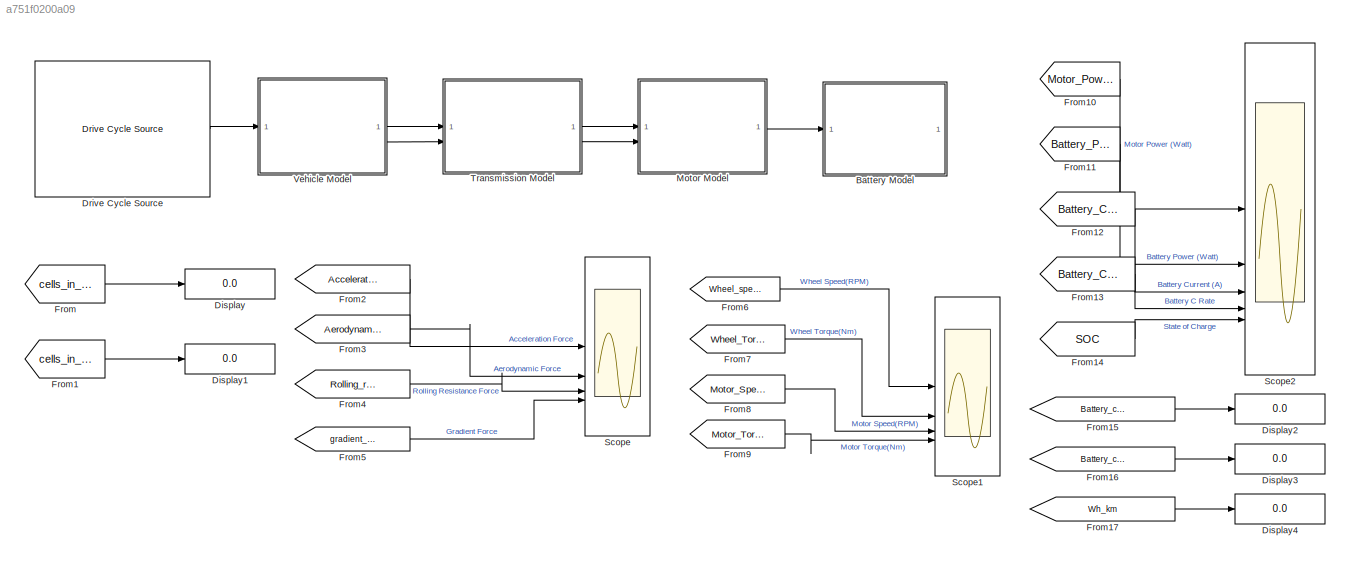
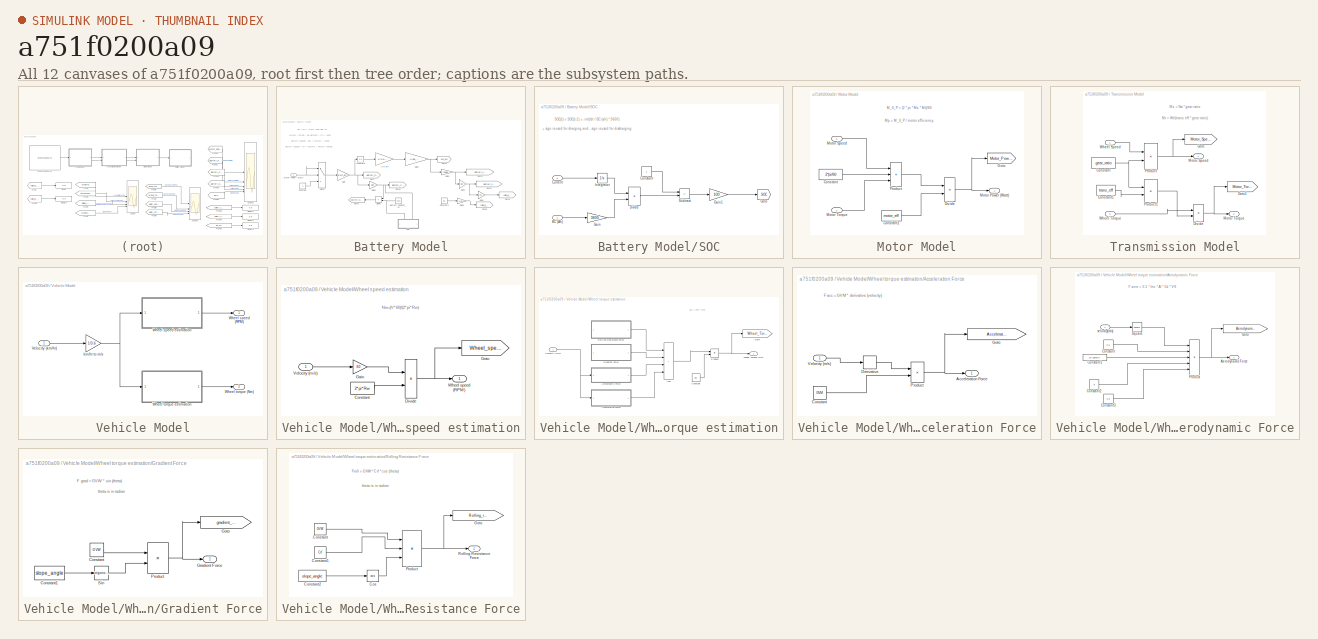
[diagram: thumbnail index - all 12 canvases of the model, root first then tree order]
MODEL slx_a751f0200a09
KIND model
CONFIG AbsTol = auto
CONFIG EnableMultiTasking = off
CONFIG FixedStep = auto
CONFIG MaxStep = auto
CONFIG MinStep = auto
CONFIG RelTol = 1e-3
CONFIG SampleTimeConstraint = Unconstrained
CONFIG SolverName = VariableStepAuto
CONFIG StartTime = 0.0
CONFIG StopTime = time
WORKSPACE source: MATLAB code (in-file)
WORKSPACE Rw = 0.254
WORKSPACE GVM = 330
WORKSPACE GVW = GVM*9.8  (= 3234)
WORKSPACE Crf = 0.015
WORKSPACE slope_angle = 0
WORKSPACE Af = 1.1
WORKSPACE Cd = 0.4
WORKSPACE gear_ratio = 6
WORKSPACE trans_eff = 0.9
WORKSPACE motor_eff = 0.9
WORKSPACE mc_eff = 0.95
WORKSPACE Bv = 72
WORKSPACE Cv = 3.6
WORKSPACE Cc = 31
WORKSPACE lap_distance = 0.787
WORKSPACE range = 20
WORKSPACE time = 60
WORKSPACE air_density = 1.225
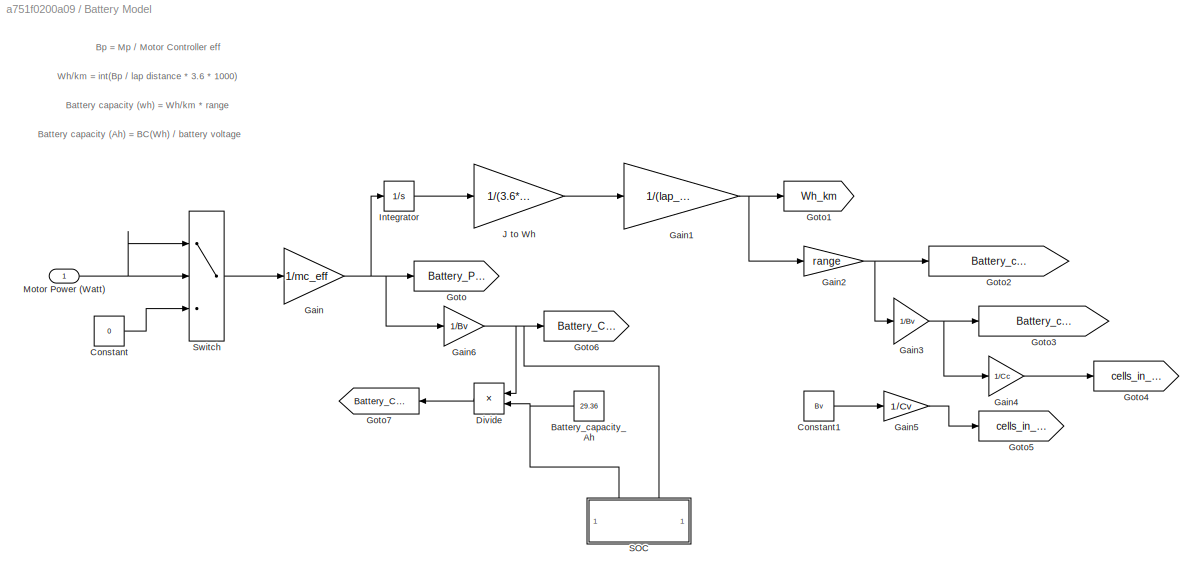
BLOCK [SubSystem] Battery Model
BLOCK [Constant] Battery Model/Battery_capacity_Ah
  Value = 29.36
BLOCK [Constant] Battery Model/Constant
  Value = 0
BLOCK [Constant] Battery Model/Constant1
  Value = Bv
BLOCK [Product] Battery Model/Divide
  Inputs = */
BLOCK [Gain] Battery Model/Gain
  Gain = 1/mc_eff
BLOCK [Gain] Battery Model/Gain1
  Gain = 1/(lap_distance)
BLOCK [Gain] Battery Model/Gain2
  Gain = range
BLOCK [Gain] Battery Model/Gain3
  Gain = 1/Bv
BLOCK [Gain] Battery Model/Gain4
  Gain = 1/Cc
BLOCK [Gain] Battery Model/Gain5
  Gain = 1/Cv
BLOCK [Gain] Battery Model/Gain6
  Gain = 1/Bv
BLOCK [Goto] Battery Model/Goto
  GotoTag = Battery_Power
  TagVisibility = global
BLOCK [Goto] Battery Model/Goto1
  GotoTag = Wh_km
  TagVisibility = global
BLOCK [Goto] Battery Model/Goto2
  GotoTag = Battery_capacity_wh
  TagVisibility = global
BLOCK [Goto] Battery Model/Goto3
  GotoTag = Battery_capacity_Ah
  TagVisibility = global
BLOCK [Goto] Battery Model/Goto4
  GotoTag = cells_in_parallel
  TagVisibility = global
BLOCK [Goto] Battery Model/Goto5
  GotoTag = cells_in_series
  TagVisibility = global
BLOCK [Goto] Battery Model/Goto6
  GotoTag = Battery_Current
  TagVisibility = global
BLOCK [Goto] Battery Model/Goto7
  GotoTag = Battery_C_rate
  TagVisibility = global
BLOCK [Integrator] Battery Model/Integrator
BLOCK [Gain] Battery Model/J to Wh
  Gain = 1/(3.6*1000)
BLOCK [Inport] Battery Model/Motor Power (Watt)
BLOCK [SubSystem] Battery Model/SOC
  PortSchema = {"entries":[{"content":{"sides":[{"content":{},"type":"ConnectorPlacement.EquallySpacedRectSide","uuid":"918ab17c-8ee6-4e28-9e81-e08d3841ca85"},{"content":{"side":"RIGHT"},"type":"ConnectorPlacement.EquallySpacedRectSide","uuid":"b145a5db-ef7a-4d63-afa7-5eae9e4776c8"},{"content":{"connectorIds":["In1","In2"],"side":"TOP"},"type":"ConnectorPlacement.EquallySpacedRectSide","uuid":"4de68463-c688-4f6b...<+205ch>
BLOCK [Inport] Battery Model/SOC/BC (Ah)
BLOCK [Constant] Battery Model/SOC/Constant
BLOCK [Inport] Battery Model/SOC/Current
  Port = 2
BLOCK [Product] Battery Model/SOC/Divide
  Inputs = */
BLOCK [Gain] Battery Model/SOC/Gain
  Gain = 3600
BLOCK [Gain] Battery Model/SOC/Gain1
  Gain = 100
BLOCK [Goto] Battery Model/SOC/Goto
  GotoTag = SOC
  TagVisibility = global
BLOCK [Integrator] Battery Model/SOC/Integrator
BLOCK [Sum] Battery Model/SOC/Subtract
  IconShape = rectangular
  Inputs = +-
BLOCK [Switch] Battery Model/Switch
  Criteria = u2 > Threshold
  InputSameDT = off
  SaturateOnIntegerOverflow = off
BLOCK [Display] Display
  Decimation = 1
BLOCK [Display] Display1
  Decimation = 1
BLOCK [Display] Display2
  Decimation = 1
BLOCK [Display] Display3
  Decimation = 1
BLOCK [Display] Display4
  Decimation = 1
BLOCK [Reference] Drive Cycle Source  REF=autolibshared/Drive Cycle Source
  AttributesFormatString = %<cycleVar> (%<tfinal>)
  LibrarySourceBlock = autolibscenario/Drive Cycle Source
  SourceBlock = autolibshared/Drive Cycle Source
  SourceType = Drive Cycle Source
BLOCK [From] From
  GotoTag = cells_in_series
  TagVisibility = global
BLOCK [From] From1
  GotoTag = cells_in_parallel
  TagVisibility = global
BLOCK [From] From10
  GotoTag = Motor_Power
  TagVisibility = global
BLOCK [From] From11
  GotoTag = Battery_Power
  TagVisibility = global
BLOCK [From] From12
  GotoTag = Battery_Current
  TagVisibility = global
BLOCK [From] From13
  GotoTag = Battery_C_rate
  TagVisibility = global
BLOCK [From] From14
  GotoTag = SOC
  TagVisibility = global
BLOCK [From] From15
  GotoTag = Battery_capacity_Ah
  TagVisibility = global
BLOCK [From] From16
  GotoTag = Battery_capacity_wh
  TagVisibility = global
BLOCK [From] From17
  GotoTag = Wh_km
  TagVisibility = global
BLOCK [From] From2
  GotoTag = Acceleration_force
  TagVisibility = global
BLOCK [From] From3
  GotoTag = Aerodynamic_force
  TagVisibility = global
BLOCK [From] From4
  GotoTag = Rolling_resistance
  TagVisibility = global
BLOCK [From] From5
  GotoTag = gradient_force
  TagVisibility = global
BLOCK [From] From6
  GotoTag = Wheel_speed
  TagVisibility = global
BLOCK [From] From7
  GotoTag = Wheel_Torque
  TagVisibility = global
BLOCK [From] From8
  GotoTag = Motor_Speed
  TagVisibility = global
BLOCK [From] From9
  GotoTag = Motor_Torque
  TagVisibility = global
BLOCK [SubSystem] Motor Model
BLOCK [Constant] Motor Model/Constant
  Value = 2*pi/60
BLOCK [Constant] Motor Model/Constant1
  Value = motor_eff
BLOCK [Product] Motor Model/Divide
  Inputs = */
BLOCK [Goto] Motor Model/Goto
  GotoTag = Motor_Power
  TagVisibility = global
BLOCK [Outport] Motor Model/Motor Power (Watt)
BLOCK [Inport] Motor Model/Motor Speed
BLOCK [Inport] Motor Model/Motor Torque
  Port = 2
BLOCK [Product] Motor Model/Product
  Inputs = 3
BLOCK [Scope] Scope
  Floating = off
  NumInputPorts = 4
  ScopeSpecificationString = Simulink.scopes.TimeScopeBlockCfg('CurrentConfiguration', extmgr.ConfigurationSet(extmgr.Configuration('Core','General UI',true),extmgr.Configuration('Core','Source UI',true),extmgr.Configuration('Sources','WiredSimulink',true),extmgr.Configuration('Visuals','Time Domain',true,'SerializedDisplays',{struct('MinYLimReal','-520.01928','MaxYLimReal','549.52392','YLabelReal','','MinYLimMag',' 0.00000',...<+3393ch>
BLOCK [Scope] Scope1
  Floating = off
  NumInputPorts = 4
  ScopeSpecificationString = Simulink.scopes.TimeScopeBlockCfg('CurrentConfiguration', extmgr.ConfigurationSet(extmgr.Configuration('Core','General UI',true),extmgr.Configuration('Core','Source UI',true),extmgr.Configuration('Sources','WiredSimulink',true,'DataLoggingVariableName','ScopeData1'),extmgr.Configuration('Visuals','Time Domain',true,'SerializedDisplays',{struct('MinYLimReal','-50.84046','MaxYLimReal','457.5641','YL...<+3433ch>
BLOCK [Scope] Scope2
  Floating = off
  NumInputPorts = 5
  ScopeSpecificationString = Simulink.scopes.TimeScopeBlockCfg('CurrentConfiguration', extmgr.ConfigurationSet(extmgr.Configuration('Core','General UI',true),extmgr.Configuration('Core','Source UI',true),extmgr.Configuration('Sources','WiredSimulink',true,'DataLoggingVariableName','ScopeData2'),extmgr.Configuration('Visuals','Time Domain',true,'SerializedDisplays',{struct('MinYLimReal','-4606.46285','MaxYLimReal','6289.35435'...<+4840ch>
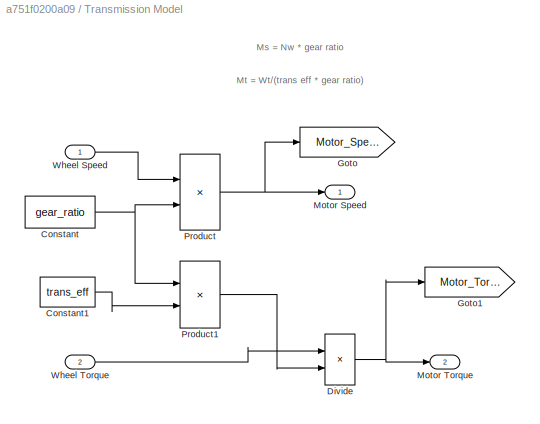
BLOCK [SubSystem] Transmission Model
BLOCK [Constant] Transmission Model/Constant
  Value = gear_ratio
BLOCK [Constant] Transmission Model/Constant1
  Value = trans_eff
BLOCK [Product] Transmission Model/Divide
  Inputs = */
BLOCK [Goto] Transmission Model/Goto
  GotoTag = Motor_Speed
  TagVisibility = global
BLOCK [Goto] Transmission Model/Goto1
  GotoTag = Motor_Torque
  TagVisibility = global
BLOCK [Outport] Transmission Model/Motor Speed
BLOCK [Outport] Transmission Model/Motor Torque
  Port = 2
BLOCK [Product] Transmission Model/Product
BLOCK [Product] Transmission Model/Product1
BLOCK [Inport] Transmission Model/Wheel Speed
BLOCK [Inport] Transmission Model/Wheel Torque
  Port = 2
BLOCK [SubSystem] Vehicle Model
BLOCK [Inport] Vehicle Model/Velocity (km//hr)
BLOCK [Outport] Vehicle Model/Wheel speed (RPM)
BLOCK [SubSystem] Vehicle Model/Wheel speed estimation
BLOCK [Constant] Vehicle Model/Wheel speed estimation/Constant
  Value = 2*pi*Rw
BLOCK [Product] Vehicle Model/Wheel speed estimation/Divide
  Inputs = */
BLOCK [Gain] Vehicle Model/Wheel speed estimation/Gain
  Gain = 60
BLOCK [Goto] Vehicle Model/Wheel speed estimation/Goto
  GotoTag = Wheel_speed
  TagVisibility = global
BLOCK [Inport] Vehicle Model/Wheel speed estimation/Velocity (m//s)
BLOCK [Outport] Vehicle Model/Wheel speed estimation/Wheel speed (RPM)
BLOCK [Outport] Vehicle Model/Wheel torque (Nm)
  Port = 2
BLOCK [SubSystem] Vehicle Model/Wheel torque estimation
BLOCK [SubSystem] Vehicle Model/Wheel torque estimation/Acceleration Force
BLOCK [Outport] Vehicle Model/Wheel torque estimation/Acceleration Force/Acceleration Force
BLOCK [Constant] Vehicle Model/Wheel torque estimation/Acceleration Force/Constant
  Value = GVM
BLOCK [Derivative] Vehicle Model/Wheel torque estimation/Acceleration Force/Derivative
BLOCK [Goto] Vehicle Model/Wheel torque estimation/Acceleration Force/Goto
  GotoTag = Acceleration_force
  TagVisibility = global
BLOCK [Product] Vehicle Model/Wheel torque estimation/Acceleration Force/Product
BLOCK [Inport] Vehicle Model/Wheel torque estimation/Acceleration Force/Velocity (m//s)
BLOCK [Sum] Vehicle Model/Wheel torque estimation/Add
  IconShape = rectangular
  Inputs = ++++
BLOCK [SubSystem] Vehicle Model/Wheel torque estimation/Aerodynamic Force
BLOCK [Outport] Vehicle Model/Wheel torque estimation/Aerodynamic Force/Aerodynamic Force
BLOCK [Constant] Vehicle Model/Wheel torque estimation/Aerodynamic Force/Constant
  Value = 0.5
BLOCK [Constant] Vehicle Model/Wheel torque estimation/Aerodynamic Force/Constant1
  Value = air_density
BLOCK [Constant] Vehicle Model/Wheel torque estimation/Aerodynamic Force/Constant2
  Value = Af
BLOCK [Constant] Vehicle Model/Wheel torque estimation/Aerodynamic Force/Constant3
  Value = Cd
BLOCK [Goto] Vehicle Model/Wheel torque estimation/Aerodynamic Force/Goto
  GotoTag = Aerodynamic_force
  TagVisibility = global
BLOCK [Product] Vehicle Model/Wheel torque estimation/Aerodynamic Force/Product
  Inputs = 5
BLOCK [Math] Vehicle Model/Wheel torque estimation/Aerodynamic Force/Square
  Operator = square
BLOCK [Inport] Vehicle Model/Wheel torque estimation/Aerodynamic Force/velocity(m//s)
BLOCK [Constant] Vehicle Model/Wheel torque estimation/Constant
  Value = Rw
BLOCK [Goto] Vehicle Model/Wheel torque estimation/Goto
  GotoTag = Wheel_Torque
  TagVisibility = global
BLOCK [SubSystem] Vehicle Model/Wheel torque estimation/Gradient Force
BLOCK [Constant] Vehicle Model/Wheel torque estimation/Gradient Force/Constant
  Value = GVW
BLOCK [Constant] Vehicle Model/Wheel torque estimation/Gradient Force/Constant1
  Value = slope_angle
BLOCK [Goto] Vehicle Model/Wheel torque estimation/Gradient Force/Goto
  GotoTag = gradient_force
  TagVisibility = global
BLOCK [Outport] Vehicle Model/Wheel torque estimation/Gradient Force/Gradient Force
BLOCK [Product] Vehicle Model/Wheel torque estimation/Gradient Force/Product
BLOCK [Trigonometry] Vehicle Model/Wheel torque estimation/Gradient Force/Sin
BLOCK [Product] Vehicle Model/Wheel torque estimation/Product
BLOCK [SubSystem] Vehicle Model/Wheel torque estimation/Rolling Resistance Force
BLOCK [Constant] Vehicle Model/Wheel torque estimation/Rolling Resistance Force/Constant
  Value = GVW
BLOCK [Constant] Vehicle Model/Wheel torque estimation/Rolling Resistance Force/Constant1
  Value = Crf
BLOCK [Constant] Vehicle Model/Wheel torque estimation/Rolling Resistance Force/Constant2
  Value = slope_angle
BLOCK [Trigonometry] Vehicle Model/Wheel torque estimation/Rolling Resistance Force/Cos
  Operator = cos
BLOCK [Goto] Vehicle Model/Wheel torque estimation/Rolling Resistance Force/Goto
  GotoTag = Rolling_resistance
  TagVisibility = global
BLOCK [Product] Vehicle Model/Wheel torque estimation/Rolling Resistance Force/Product
  Inputs = 3
BLOCK [Outport] Vehicle Model/Wheel torque estimation/Rolling Resistance Force/Rolling Resistance Force
BLOCK [Inport] Vehicle Model/Wheel torque estimation/Velocity (m//s)
BLOCK [Outport] Vehicle Model/Wheel torque estimation/Wheel Torque (Nm)
BLOCK [Gain] Vehicle Model/km//hr to m//s
  Gain = 1/3.6
ANNOTATION Battery Model: Wh/km = int(Bp / lap distance * 3.6 * 1000)
ANNOTATION Battery Model: Battery capacity (Ah) = BC(Wh) / battery voltage
ANNOTATION Battery Model: Battery capacity (wh) = Wh/km * range
ANNOTATION Battery Model: Bp = Mp / Motor Controller eff
ANNOTATION Battery Model/SOC: + sign is used for charging and - sign is used for discharging
ANNOTATION Battery Model/SOC: SOC(t) = SOC(t-1) +- int(Idt / BC (ah) * 3600)
ANNOTATION Motor Model: M_U_P = (2 * pi * Ms * Mt)/60
ANNOTATION Motor Model: Mp = M_U_P / motor efficiency
ANNOTATION Transmission Model: Ms = Nw * gear ratio
ANNOTATION Transmission Model: Mt = Wt/(trans eff * gear ratio)
ANNOTATION Vehicle Model/Wheel speed estimation: Nw=(V*60)/(2*pi*Rw)
ANNOTATION Vehicle Model/Wheel torque estimation: Wt = TTF * Rw
ANNOTATION Vehicle Model/Wheel torque estimation/Acceleration Force: F acc = GVM * derivative (velocity)
ANNOTATION Vehicle Model/Wheel torque estimation/Aerodynamic Force: F aero = 0.5 * rho * Af * Cd * V^2
ANNOTATION Vehicle Model/Wheel torque estimation/Gradient Force: F grad = GVW * sin (theta)
ANNOTATION Vehicle Model/Wheel torque estimation/Gradient Force: theta is in radian
ANNOTATION Vehicle Model/Wheel torque estimation/Rolling Resistance Force: Froll = GVW * Crf * cos (theta)
ANNOTATION Vehicle Model/Wheel torque estimation/Rolling Resistance Force: theta is in radian
NET Battery Model/Battery_capacity_Ah:1 -> Battery Model/Divide:2, Battery Model/SOC:1
LINE Battery Model/Constant1:1 -> Battery Model/Gain5:1
LINE Battery Model/Constant:1 -> Battery Model/Switch:3
LINE Battery Model/Divide:1 -> Battery Model/Goto7:1
NET Battery Model/Gain1:1 -> Battery Model/Gain2:1, Battery Model/Goto1:1
NET Battery Model/Gain2:1 -> Battery Model/Gain3:1, Battery Model/Goto2:1
NET Battery Model/Gain3:1 -> Battery Model/Gain4:1, Battery Model/Goto3:1
LINE Battery Model/Gain4:1 -> Battery Model/Goto4:1
LINE Battery Model/Gain5:1 -> Battery Model/Goto5:1
NET Battery Model/Gain6:1 -> Battery Model/Divide:1, Battery Model/Goto6:1, Battery Model/SOC:2
NET Battery Model/Gain:1 -> Battery Model/Gain6:1, Battery Model/Goto:1, Battery Model/Integrator:1
LINE Battery Model/Integrator:1 -> Battery Model/J to Wh:1
LINE Battery Model/J to Wh:1 -> Battery Model/Gain1:1
NET Battery Model/Motor Power (Watt):1 -> Battery Model/Switch:1, Battery Model/Switch:2
LINE Battery Model/SOC/BC (Ah):1 -> Battery Model/SOC/Gain:1
LINE Battery Model/SOC/Constant:1 -> Battery Model/SOC/Subtract:1
LINE Battery Model/SOC/Current:1 -> Battery Model/SOC/Integrator:1
LINE Battery Model/SOC/Divide:1 -> Battery Model/SOC/Subtract:2
LINE Battery Model/SOC/Gain1:1 -> Battery Model/SOC/Goto:1
LINE Battery Model/SOC/Gain:1 -> Battery Model/SOC/Divide:2
LINE Battery Model/SOC/Integrator:1 -> Battery Model/SOC/Divide:1
LINE Battery Model/SOC/Subtract:1 -> Battery Model/SOC/Gain1:1
LINE Battery Model/Switch:1 -> Battery Model/Gain:1
LINE Drive Cycle Source:1 -> Vehicle Model:1
LINE From10:1 -> Scope2:1
LINE From11:1 -> Scope2:2
LINE From12:1 -> Scope2:3
LINE From13:1 -> Scope2:4
LINE From14:1 -> Scope2:5
LINE From15:1 -> Display2:1
LINE From16:1 -> Display3:1
LINE From17:1 -> Display4:1
LINE From1:1 -> Display1:1
LINE From2:1 -> Scope:1
LINE From3:1 -> Scope:2
LINE From4:1 -> Scope:3
LINE From5:1 -> Scope:4
LINE From6:1 -> Scope1:1
LINE From7:1 -> Scope1:2
LINE From8:1 -> Scope1:3
LINE From9:1 -> Scope1:4
LINE From:1 -> Display:1
LINE Motor Model/Constant1:1 -> Motor Model/Divide:2
LINE Motor Model/Constant:1 -> Motor Model/Product:2
NET Motor Model/Divide:1 -> Motor Model/Goto:1, Motor Model/Motor Power (Watt):1
LINE Motor Model/Motor Speed:1 -> Motor Model/Product:1
LINE Motor Model/Motor Torque:1 -> Motor Model/Product:3
LINE Motor Model/Product:1 -> Motor Model/Divide:1
LINE Motor Model:1 -> Battery Model:1
LINE Transmission Model/Constant1:1 -> Transmission Model/Product1:2
NET Transmission Model/Constant:1 -> Transmission Model/Product1:1, Transmission Model/Product:2
NET Transmission Model/Divide:1 -> Transmission Model/Goto1:1, Transmission Model/Motor Torque:1
LINE Transmission Model/Product1:1 -> Transmission Model/Divide:2
NET Transmission Model/Product:1 -> Transmission Model/Goto:1, Transmission Model/Motor Speed:1
LINE Transmission Model/Wheel Speed:1 -> Transmission Model/Product:1
LINE Transmission Model/Wheel Torque:1 -> Transmission Model/Divide:1
LINE Transmission Model:1 -> Motor Model:1
LINE Transmission Model:2 -> Motor Model:2
LINE Vehicle Model/Velocity (km//hr):1 -> Vehicle Model/km//hr to m//s:1
LINE Vehicle Model/Wheel speed estimation/Constant:1 -> Vehicle Model/Wheel speed estimation/Divide:2
NET Vehicle Model/Wheel speed estimation/Divide:1 -> Vehicle Model/Wheel speed estimation/Goto:1, Vehicle Model/Wheel speed estimation/Wheel speed (RPM):1
LINE Vehicle Model/Wheel speed estimation/Gain:1 -> Vehicle Model/Wheel speed estimation/Divide:1
LINE Vehicle Model/Wheel speed estimation/Velocity (m//s):1 -> Vehicle Model/Wheel speed estimation/Gain:1
LINE Vehicle Model/Wheel speed estimation:1 -> Vehicle Model/Wheel speed (RPM):1
LINE Vehicle Model/Wheel torque estimation/Acceleration Force/Constant:1 -> Vehicle Model/Wheel torque estimation/Acceleration Force/Product:2
LINE Vehicle Model/Wheel torque estimation/Acceleration Force/Derivative:1 -> Vehicle Model/Wheel torque estimation/Acceleration Force/Product:1
NET Vehicle Model/Wheel torque estimation/Acceleration Force/Product:1 -> Vehicle Model/Wheel torque estimation/Acceleration Force/Acceleration Force:1, Vehicle Model/Wheel torque estimation/Acceleration Force/Goto:1
LINE Vehicle Model/Wheel torque estimation/Acceleration Force/Velocity (m//s):1 -> Vehicle Model/Wheel torque estimation/Acceleration Force/Derivative:1
LINE Vehicle Model/Wheel torque estimation/Acceleration Force:1 -> Vehicle Model/Wheel torque estimation/Add:4
LINE Vehicle Model/Wheel torque estimation/Add:1 -> Vehicle Model/Wheel torque estimation/Product:1
LINE Vehicle Model/Wheel torque estimation/Aerodynamic Force/Constant1:1 -> Vehicle Model/Wheel torque estimation/Aerodynamic Force/Product:3
LINE Vehicle Model/Wheel torque estimation/Aerodynamic Force/Constant2:1 -> Vehicle Model/Wheel torque estimation/Aerodynamic Force/Product:4
LINE Vehicle Model/Wheel torque estimation/Aerodynamic Force/Constant3:1 -> Vehicle Model/Wheel torque estimation/Aerodynamic Force/Product:5
LINE Vehicle Model/Wheel torque estimation/Aerodynamic Force/Constant:1 -> Vehicle Model/Wheel torque estimation/Aerodynamic Force/Product:2
NET Vehicle Model/Wheel torque estimation/Aerodynamic Force/Product:1 -> Vehicle Model/Wheel torque estimation/Aerodynamic Force/Aerodynamic Force:1, Vehicle Model/Wheel torque estimation/Aerodynamic Force/Goto:1
LINE Vehicle Model/Wheel torque estimation/Aerodynamic Force/Square:1 -> Vehicle Model/Wheel torque estimation/Aerodynamic Force/Product:1
LINE Vehicle Model/Wheel torque estimation/Aerodynamic Force/velocity(m//s):1 -> Vehicle Model/Wheel torque estimation/Aerodynamic Force/Square:1
LINE Vehicle Model/Wheel torque estimation/Aerodynamic Force:1 -> Vehicle Model/Wheel torque estimation/Add:3
LINE Vehicle Model/Wheel torque estimation/Constant:1 -> Vehicle Model/Wheel torque estimation/Product:2
LINE Vehicle Model/Wheel torque estimation/Gradient Force/Constant1:1 -> Vehicle Model/Wheel torque estimation/Gradient Force/Sin:1
LINE Vehicle Model/Wheel torque estimation/Gradient Force/Constant:1 -> Vehicle Model/Wheel torque estimation/Gradient Force/Product:1
NET Vehicle Model/Wheel torque estimation/Gradient Force/Product:1 -> Vehicle Model/Wheel torque estimation/Gradient Force/Goto:1, Vehicle Model/Wheel torque estimation/Gradient Force/Gradient Force:1
LINE Vehicle Model/Wheel torque estimation/Gradient Force/Sin:1 -> Vehicle Model/Wheel torque estimation/Gradient Force/Product:2
LINE Vehicle Model/Wheel torque estimation/Gradient Force:1 -> Vehicle Model/Wheel torque estimation/Add:2
NET Vehicle Model/Wheel torque estimation/Product:1 -> Vehicle Model/Wheel torque estimation/Goto:1, Vehicle Model/Wheel torque estimation/Wheel Torque (Nm):1
LINE Vehicle Model/Wheel torque estimation/Rolling Resistance Force/Constant1:1 -> Vehicle Model/Wheel torque estimation/Rolling Resistance Force/Product:2
LINE Vehicle Model/Wheel torque estimation/Rolling Resistance Force/Constant2:1 -> Vehicle Model/Wheel torque estimation/Rolling Resistance Force/Cos:1
LINE Vehicle Model/Wheel torque estimation/Rolling Resistance Force/Constant:1 -> Vehicle Model/Wheel torque estimation/Rolling Resistance Force/Product:1
LINE Vehicle Model/Wheel torque estimation/Rolling Resistance Force/Cos:1 -> Vehicle Model/Wheel torque estimation/Rolling Resistance Force/Product:3
NET Vehicle Model/Wheel torque estimation/Rolling Resistance Force/Product:1 -> Vehicle Model/Wheel torque estimation/Rolling Resistance Force/Goto:1, Vehicle Model/Wheel torque estimation/Rolling Resistance Force/Rolling Resistance Force:1
LINE Vehicle Model/Wheel torque estimation/Rolling Resistance Force:1 -> Vehicle Model/Wheel torque estimation/Add:1
NET Vehicle Model/Wheel torque estimation/Velocity (m//s):1 -> Vehicle Model/Wheel torque estimation/Acceleration Force:1, Vehicle Model/Wheel torque estimation/Aerodynamic Force:1
LINE Vehicle Model/Wheel torque estimation:1 -> Vehicle Model/Wheel torque (Nm):1
NET Vehicle Model/km//hr to m//s:1 -> Vehicle Model/Wheel speed estimation:1, Vehicle Model/Wheel torque estimation:1
LINE Vehicle Model:1 -> Transmission Model:1
LINE Vehicle Model:2 -> Transmission Model:2
note: NET lines group one-source signal fan-out (src -> all destinations, sorted); 1:1 wires keep LINE
